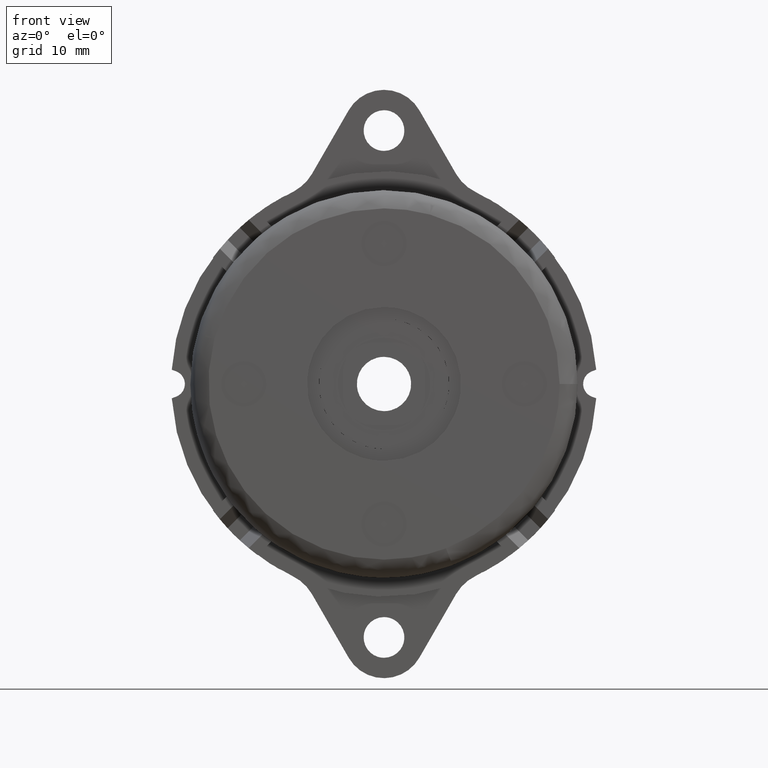
[diagram: clean part render]
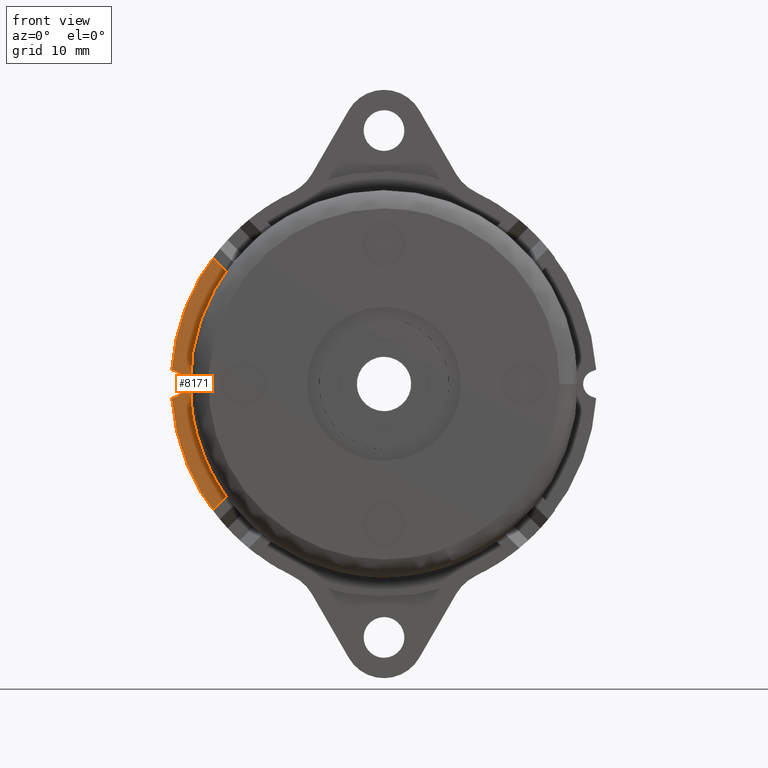
[diagram: same view with one face highlighted and labeled with its STEP entity id]
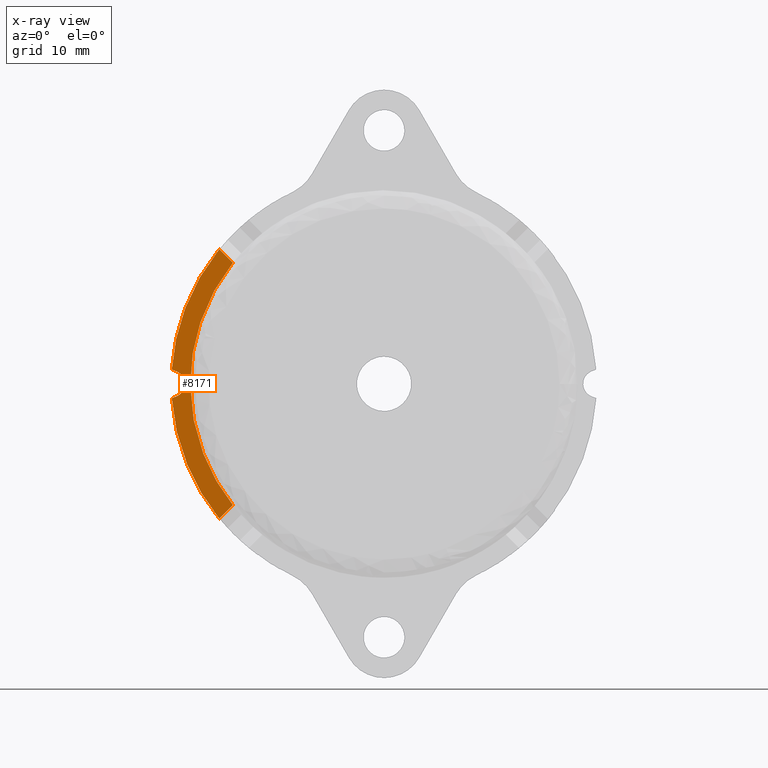
[diagram: x-ray of the same camera — body ghosted, the highlighted face saturated]
A machine part, front view. The second image highlights one B-rep face of the part: STEP entity #8171.
The next image is the same camera in x-ray: the body ghosted, the highlighted face saturated — about 0% of this face is hidden behind the body in this view.
In plain terms, the highlighted face is a freeform B-spline surface patch.
Its self-contained STEP definition (entity closure, byte-faithful):
#4170=CARTESIAN_POINT('',(-16.702272138371701,-2.600005000000000,13.378870266796600));
#4171=VERTEX_POINT('',#4170);
#4177=CARTESIAN_POINT('',(-21.399876061226148,-2.600005000000000,-0.073004231344138));
#4178=VERTEX_POINT('',#4177);
#4179=CARTESIAN_POINT('',(-16.702272138371701,-2.600005000000000,13.378870266796600));
#4180=CARTESIAN_POINT('',(-21.425650655436538,-2.600005000000000,7.482172162914129));
#4181=CARTESIAN_POINT('',(-21.399876061226156,-2.600005000000000,-0.073004231344138));
#4189=(BOUNDED_CURVE()B_SPLINE_CURVE(2,(#4179,#4180,#4181),.UNSPECIFIED.,.F.,.U.)B_SPLINE_CURVE_WITH_KNOTS((3,3),(0.0,0.502428888560449),.UNSPECIFIED.)CURVE()GEOMETRIC_REPRESENTATION_ITEM()RATIONAL_B_SPLINE_CURVE((1.0,0.889706786145754,0.890242565996605))REPRESENTATION_ITEM(''));
#4190=EDGE_CURVE('',#4171,#4178,#4189,.T.);
#4386=CARTESIAN_POINT('',(-16.702272138371701,-2.600005000000000,-13.378870266796600));
#4387=VERTEX_POINT('',#4386);
#4388=CARTESIAN_POINT('',(-21.399876061226156,-2.600005000000000,-0.073004231344138));
#4389=CARTESIAN_POINT('',(-21.374382392006716,-2.600005000000001,-7.546175814254736));
#4390=CARTESIAN_POINT('',(-16.702272138371701,-2.600005000000000,-13.378870266796600));
#4398=(BOUNDED_CURVE()B_SPLINE_CURVE(2,(#4388,#4389,#4390),.UNSPECIFIED.,.F.,.U.)B_SPLINE_CURVE_WITH_KNOTS((3,3),(0.502428888560448,1.0),.UNSPECIFIED.)CURVE()GEOMETRIC_REPRESENTATION_ITEM()RATIONAL_B_SPLINE_CURVE((0.890242565996605,0.890773165613675,1.0))REPRESENTATION_ITEM(''));
#4399=EDGE_CURVE('',#4178,#4387,#4398,.T.);
#6188=CARTESIAN_POINT('',(-22.991817924034599,-2.600005000000000,-1.411294079087534));
#6189=VERTEX_POINT('',#6188);
#6195=CARTESIAN_POINT('',(-22.986954999999899,-2.600005000000000,1.409545000000000));
#6196=VERTEX_POINT('',#6195);
#6197=CARTESIAN_POINT('',(-22.991817924034599,-2.600005000000000,-1.411294079087543));
#6198=CARTESIAN_POINT('',(-22.001787478122932,-2.600005000000000,-1.054827879631151));
#6199=CARTESIAN_POINT('',(-21.999973478703581,-2.600005000000000,-0.002580216486659));
#6200=CARTESIAN_POINT('',(-21.998159479284222,-2.600005000000000,1.049667446657833));
#6201=CARTESIAN_POINT('',(-22.986954999999899,-2.600005000000000,1.409545000000002));
#6209=(BOUNDED_CURVE()B_SPLINE_CURVE(2,(#6197,#6198,#6199,#6200,#6201),.UNSPECIFIED.,.F.,.U.)B_SPLINE_CURVE_WITH_KNOTS((3,2,3),(0.0,0.500000000000000,1.0),.UNSPECIFIED.)CURVE()GEOMETRIC_REPRESENTATION_ITEM()RATIONAL_B_SPLINE_CURVE((1.0,0.818653598503861,1.0,0.818653598503861,1.0))REPRESENTATION_ITEM(''));
#6210=EDGE_CURVE('',#6189,#6196,#6209,.T.);
#6226=CARTESIAN_POINT('',(-23.447028209247801,-2.600005000000000,-1.576980708423025));
#6227=VERTEX_POINT('',#6226);
#6233=CARTESIAN_POINT('',(-23.447028209247801,-2.600005000000000,-1.576980708423025));
#6234=CARTESIAN_POINT('',(-22.991817924034599,-2.600005000000000,-1.411294079087534));
#6235=QUASI_UNIFORM_CURVE('',1,(#6233,#6234),.UNSPECIFIED.,.F.,.U.);
#6236=EDGE_CURVE('',#6227,#6189,#6235,.T.);
#6249=CARTESIAN_POINT('',(-23.447027522571350,-2.600005000000000,1.576990918103645));
#6250=VERTEX_POINT('',#6249);
#6251=CARTESIAN_POINT('',(-22.986954999999899,-2.600005000000000,1.409545000000000));
#6252=CARTESIAN_POINT('',(-23.447027522571350,-2.600005000000000,1.576990918103645));
#6253=QUASI_UNIFORM_CURVE('',1,(#6251,#6252),.UNSPECIFIED.,.F.,.U.);
#6254=EDGE_CURVE('',#6196,#6250,#6253,.T.);
#6576=CARTESIAN_POINT('',(-18.195416489165201,-2.600005000000000,14.872014617590141));
#6577=VERTEX_POINT('',#6576);
#6583=CARTESIAN_POINT('',(-16.702272138371701,-2.600005000000000,13.378870266796600));
#6584=CARTESIAN_POINT('',(-18.195416489165201,-2.600005000000000,14.872014617590141));
#6585=QUASI_UNIFORM_CURVE('',1,(#6583,#6584),.UNSPECIFIED.,.F.,.U.);
#6586=EDGE_CURVE('',#4171,#6577,#6585,.T.);
#6643=CARTESIAN_POINT('',(-18.195416489165201,-2.600005000000000,-14.872014617590120));
#6644=VERTEX_POINT('',#6643);
#6645=CARTESIAN_POINT('',(-18.195416489165201,-2.600005000000000,-14.872014617590120));
#6646=CARTESIAN_POINT('',(-16.702272138371701,-2.600005000000000,-13.378870266796600));
#6647=QUASI_UNIFORM_CURVE('',1,(#6645,#6646),.UNSPECIFIED.,.F.,.U.);
#6648=EDGE_CURVE('',#6644,#4387,#6647,.T.);
#8131=CARTESIAN_POINT('',(-23.783929687542582,-2.600005000000000,-16.357729378668999));
#8132=CARTESIAN_POINT('',(-23.783929687542582,-2.600005000000000,16.357729644601370));
#8133=CARTESIAN_POINT('',(-16.365371866133302,-2.600005000000000,-16.357729378668999));
#8134=CARTESIAN_POINT('',(-16.365371866133302,-2.600005000000000,16.357729644601370));
#8135=B_SPLINE_SURFACE_WITH_KNOTS('',1,1,((#8131,#8133),(#8132,#8134)),.UNSPECIFIED.,.F.,.F.,.U.,(2,2),(2,2),(0.0,32.715459023270370),(0.0,7.418557821409280),.UNSPECIFIED.);
#8136=ORIENTED_EDGE('',*,*,#6254,.F.);
#8137=ORIENTED_EDGE('',*,*,#6210,.F.);
#8138=ORIENTED_EDGE('',*,*,#6236,.F.);
#8139=CARTESIAN_POINT('',(-23.447028209247790,-2.600005000000000,-1.576980708423024));
#8140=CARTESIAN_POINT('',(-22.943551236547741,-2.600005000000000,-9.062829278764683));
#8141=CARTESIAN_POINT('',(-18.195416489165229,-2.600005000000000,-14.872014617590120));
#8149=(BOUNDED_CURVE()B_SPLINE_CURVE(2,(#8139,#8140,#8141),.UNSPECIFIED.,.F.,.U.)CURVE()GEOMETRIC_REPRESENTATION_ITEM()QUASI_UNIFORM_CURVE()RATIONAL_B_SPLINE_CURVE((1.0,0.952626791242617,1.0))REPRESENTATION_ITEM(''));
#8150=EDGE_CURVE('',#6227,#6644,#8149,.T.);
#8151=ORIENTED_EDGE('',*,*,#8150,.T.);
#8152=ORIENTED_EDGE('',*,*,#6648,.T.);
#8153=ORIENTED_EDGE('',*,*,#4399,.F.);
#8154=ORIENTED_EDGE('',*,*,#4190,.F.);
#8155=ORIENTED_EDGE('',*,*,#6586,.T.);
#8156=CARTESIAN_POINT('',(-18.195416489165190,-2.600005000000000,14.872014617590160));
#8157=CARTESIAN_POINT('',(-22.943547668599436,-2.600005000000000,9.062833644031082));
#8158=CARTESIAN_POINT('',(-23.447027522571361,-2.600005000000000,1.576990918103645));
#8166=(BOUNDED_CURVE()B_SPLINE_CURVE(2,(#8156,#8157,#8158),.UNSPECIFIED.,.F.,.U.)CURVE()GEOMETRIC_REPRESENTATION_ITEM()QUASI_UNIFORM_CURVE()RATIONAL_B_SPLINE_CURVE((1.0,0.952626857459729,1.0))REPRESENTATION_ITEM(''));
#8167=EDGE_CURVE('',#6577,#6250,#8166,.T.);
#8168=ORIENTED_EDGE('',*,*,#8167,.T.);
#8169=EDGE_LOOP('',(#8136,#8137,#8138,#8151,#8152,#8153,#8154,#8155,#8168));
#8170=FACE_OUTER_BOUND('',#8169,.T.);
#8171=ADVANCED_FACE('',(#8170),#8135,.F.);